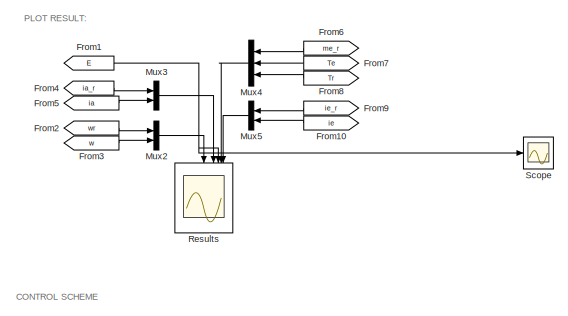
[diagram: root canvas - part 1/2, top left region]
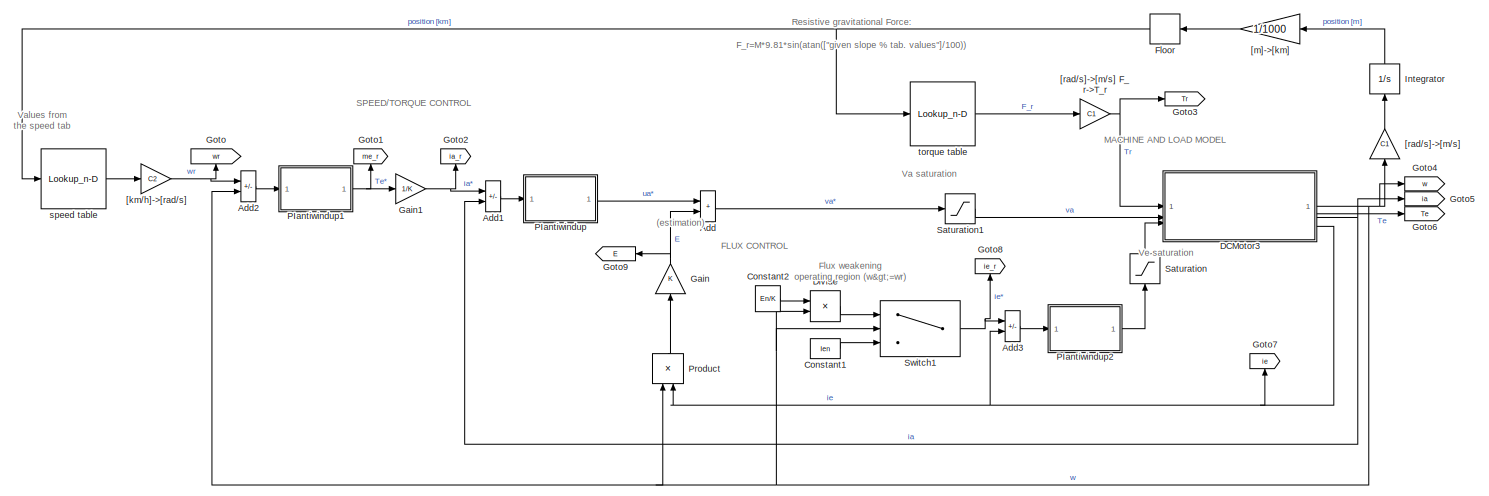
[diagram: root canvas - part 2/2, full width, bottom band]
MODEL slx_ce5a0983a4ae
KIND model
CONFIG AbsTol = auto
CONFIG EnableMultiTasking = off
CONFIG FixedStep = auto
CONFIG MaxStep = auto
CONFIG MinStep = auto
CONFIG RelTol = 1e-3
CONFIG SampleTimeConstraint = Unconstrained
CONFIG SolverName = VariableStepAuto
CONFIG StartTime = 0.0
CONFIG StopTime = 750
BLOCK [Sum] Add
  IconShape = rectangular
BLOCK [Sum] Add1
  IconShape = rectangular
  Inputs = +-
BLOCK [Sum] Add2
  IconShape = rectangular
  Inputs = +-
BLOCK [Sum] Add3
  IconShape = rectangular
  Inputs = +-
BLOCK [Constant] Constant1
  Value = Ien
BLOCK [Constant] Constant2
  Value = En/K
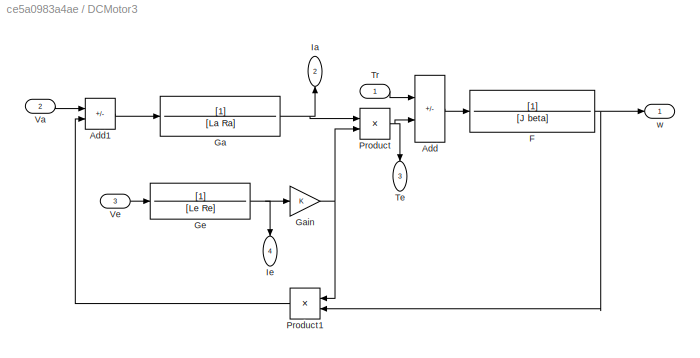
BLOCK [SubSystem] DCMotor3
BLOCK [Sum] DCMotor3/Add
  IconShape = rectangular
  Inputs = -+
BLOCK [Sum] DCMotor3/Add1
  IconShape = rectangular
  Inputs = +-
BLOCK [TransferFcn] DCMotor3/F
  Denominator = [J beta]
BLOCK [TransferFcn] DCMotor3/Ga
  Denominator = [La Ra]
BLOCK [Gain] DCMotor3/Gain
  Gain = K
BLOCK [TransferFcn] DCMotor3/Ge
  Denominator = [Le Re]
BLOCK [Outport] DCMotor3/Ia
  NameLocation = right
  Port = 2
  VectorParamsAs1DForOutWhenUnconnected = off
BLOCK [Outport] DCMotor3/Ie
  NameLocation = left
  Port = 4
  VectorParamsAs1DForOutWhenUnconnected = off
BLOCK [Product] DCMotor3/Product
BLOCK [Product] DCMotor3/Product1
BLOCK [Outport] DCMotor3/Te
  NameLocation = left
  Port = 3
  VectorParamsAs1DForOutWhenUnconnected = off
BLOCK [Inport] DCMotor3/Tr
  NameLocation = top
BLOCK [Inport] DCMotor3/Va
  NameLocation = top
  Port = 2
BLOCK [Inport] DCMotor3/Ve
  Port = 3
BLOCK [Outport] DCMotor3/w
  VectorParamsAs1DForOutWhenUnconnected = off
BLOCK [Product] Divide
  Inputs = */
BLOCK [Rounding] Floor
BLOCK [From] From1
  GotoTag = E
  IconDisplay = Signal name
BLOCK [From] From10
  GotoTag = ie
  IconDisplay = Signal name
BLOCK [From] From2
  GotoTag = wr
  IconDisplay = Signal name
BLOCK [From] From3
  GotoTag = w
  IconDisplay = Signal name
BLOCK [From] From4
  GotoTag = ia_r
  IconDisplay = Signal name
  TagVisibility = global
BLOCK [From] From5
  GotoTag = ia
  IconDisplay = Signal name
BLOCK [From] From6
  GotoTag = me_r
BLOCK [From] From7
  GotoTag = Te
  IconDisplay = Signal name
BLOCK [From] From8
  GotoTag = Tr
  IconDisplay = Signal name
BLOCK [From] From9
  GotoTag = ie_r
  IconDisplay = Signal name
BLOCK [Gain] Gain
  Gain = K
  NameLocation = left
BLOCK [Gain] Gain1
  Gain = 1/K
  NameLocation = top
BLOCK [Goto] Goto
  GotoTag = wr
  NameLocation = left
BLOCK [Goto] Goto1
  GotoTag = me_r
  NameLocation = right
BLOCK [Goto] Goto2
  GotoTag = ia_r
  NameLocation = left
  TagVisibility = global
BLOCK [Goto] Goto3
  GotoTag = Tr
BLOCK [Goto] Goto4
  GotoTag = w
  IconDisplay = Signal name
BLOCK [Goto] Goto5
  GotoTag = ia
  IconDisplay = Signal name
BLOCK [Goto] Goto6
  GotoTag = Te
  IconDisplay = Signal name
BLOCK [Goto] Goto7
  GotoTag = ie
  NameLocation = left
BLOCK [Goto] Goto8
  GotoTag = ie_r
  NameLocation = left
BLOCK [Goto] Goto9
  GotoTag = E
BLOCK [Integrator] Integrator
  NameLocation = right
BLOCK [Mux] Mux2
  DisplayOption = bar
  Inputs = 2
BLOCK [Mux] Mux3
  DisplayOption = bar
  Inputs = 2
BLOCK [Mux] Mux4
  DisplayOption = bar
  Inputs = 3
BLOCK [Mux] Mux5
  DisplayOption = bar
  Inputs = 2
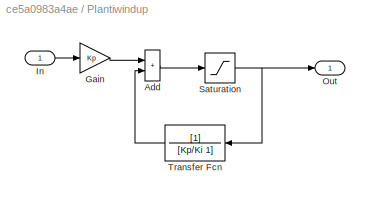
BLOCK [SubSystem] PIantiwindup
BLOCK [Sum] PIantiwindup/Add
  IconShape = rectangular
BLOCK [Gain] PIantiwindup/Gain
  Gain = Kp
BLOCK [Inport] PIantiwindup/In
BLOCK [Outport] PIantiwindup/Out
  VectorParamsAs1DForOutWhenUnconnected = off
BLOCK [Saturate] PIantiwindup/Saturation
  LowerLimit = sat_down
  UpperLimit = sat_up
BLOCK [TransferFcn] PIantiwindup/Transfer Fcn
  Denominator = [Kp/Ki 1]
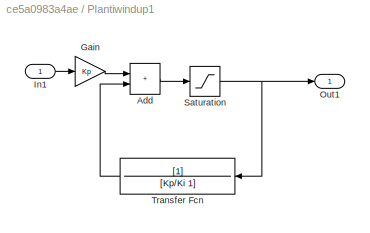
BLOCK [SubSystem] PIantiwindup1
BLOCK [Sum] PIantiwindup1/Add
  IconShape = rectangular
BLOCK [Gain] PIantiwindup1/Gain
  Gain = Kp
BLOCK [Inport] PIantiwindup1/In1
BLOCK [Outport] PIantiwindup1/Out1
  VectorParamsAs1DForOutWhenUnconnected = off
BLOCK [Saturate] PIantiwindup1/Saturation
  LowerLimit = sat_down
  UpperLimit = sat_up
BLOCK [TransferFcn] PIantiwindup1/Transfer Fcn
  Denominator = [Kp/Ki 1]
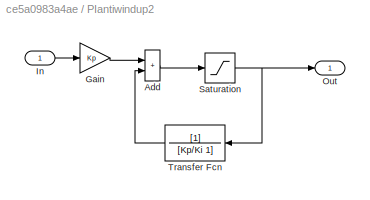
BLOCK [SubSystem] PIantiwindup2
BLOCK [Sum] PIantiwindup2/Add
  IconShape = rectangular
BLOCK [Gain] PIantiwindup2/Gain
  Gain = Kp
BLOCK [Inport] PIantiwindup2/In
BLOCK [Outport] PIantiwindup2/Out
  VectorParamsAs1DForOutWhenUnconnected = off
BLOCK [Saturate] PIantiwindup2/Saturation
  LowerLimit = sat_down
  UpperLimit = sat_up
BLOCK [TransferFcn] PIantiwindup2/Transfer Fcn
  Denominator = [Kp/Ki 1]
BLOCK [Product] Product
  NameLocation = left
BLOCK [Scope] Results
  Floating = off
  NameLocation = left
  NumInputPorts = 5
  ScopeSpecificationString = Simulink.scopes.TimeScopeBlockCfg('CurrentConfiguration', extmgr.ConfigurationSet(extmgr.Configuration('Core','General UI',true,'FigureColor',[1 1 1]),extmgr.Configuration('Core','Source UI',true),extmgr.Configuration('Sources','WiredSimulink',true),extmgr.Configuration('Visuals','Time Domain',true,'SerializedDisplays',{struct('MinYLimReal','-50.5563','MaxYLimReal','445.13841','YLabelReal','','Min...<+5432ch>
BLOCK [Saturate] Saturation
  LowerLimit = -Ven
  NameLocation = right
  UpperLimit = Ven
BLOCK [Saturate] Saturation1
  LowerLimit = -Vn
  UpperLimit = Vn
BLOCK [Scope] Scope
  Floating = off
  NumInputPorts = 1
  ScopeSpecificationString = Simulink.scopes.TimeScopeBlockCfg('CurrentConfiguration', extmgr.ConfigurationSet(extmgr.Configuration('Core','General UI',true,'FigureColor',[1 1 1]),extmgr.Configuration('Core','Source UI',true),extmgr.Configuration('Sources','WiredSimulink',true,'DataLoggingVariableName','ScopeData2'),extmgr.Configuration('Visuals','Time Domain',true,'SerializedDisplays',{struct('MinYLimReal','-67.97671','MaxYL...<+1551ch>
BLOCK [Switch] Switch1
  InputSameDT = off
  SaturateOnIntegerOverflow = off
  Threshold = 314
BLOCK [Gain] [km//h]->[rad//s]
  Gain = C2
BLOCK [Gain] [m]->[km]
  Gain = 1/1000
BLOCK [Gain] [rad//s]->[m//s]
  Gain = C1
  NameLocation = right
BLOCK [Gain] [rad//s]->[m//s] F_r->T_r
  Gain = C1
BLOCK [Lookup_n-D] speed table
  BreakpointsForDimension1 = [0 1 3 4 6 8 9 10]
  InputPortMap = u0
  InternalRulePriority = Speed
  InterpMethod = Flat
  NumberOfTableDimensions = 1
  RndMeth = Simplest
  Table = [35 60 60 75 60 60 35 0]
BLOCK [Lookup_n-D] torque table
  BreakpointsForDimension1 = [0 1 3 4 6 8 9 10]
  InputPortMap = u0
  InternalRulePriority = Speed
  InterpMethod = Flat
  NumberOfTableDimensions = 1
  RndMeth = Simplest
  Table = M*9.81*sin(atan([0 0 0.05 0 0 -0.05 0 0]))
ANNOTATION (root): (estimation)
ANNOTATION (root): CONTROL SCHEME
ANNOTATION (root): Flux weakening operating region (w>=wr)
ANNOTATION (root): FLUX CONTROL
ANNOTATION (root): SPEED/TORQUE CONTROL
ANNOTATION (root): MACHINE AND LOAD MODEL
ANNOTATION (root): PLOT RESULT:
ANNOTATION (root): Resistive gravitational Force: F_r=M*9.81*sin(atan(["given slope % tab. values"]/100))
ANNOTATION (root): Va saturation
ANNOTATION (root): Values from the speed tab
ANNOTATION (root): Ve saturation
LINE Add1:1 -> PIantiwindup:1
LINE Add2:1 -> PIantiwindup1:1
LINE Add3:1 -> PIantiwindup2:1
LINE Add:1 -> Saturation1:1
LINE Constant1:1 -> Switch1:3
LINE Constant2:1 -> Divide:1
LINE DCMotor3/Add1:1 -> DCMotor3/Ga:1
LINE DCMotor3/Add:1 -> DCMotor3/F:1
NET DCMotor3/F:1 -> DCMotor3/Product1:2, DCMotor3/w:1
NET DCMotor3/Ga:1 -> DCMotor3/Ia:1, DCMotor3/Product:1
NET DCMotor3/Gain:1 -> DCMotor3/Product1:1, DCMotor3/Product:2
NET DCMotor3/Ge:1 -> DCMotor3/Gain:1, DCMotor3/Ie:1
LINE DCMotor3/Product1:1 -> DCMotor3/Add1:2
NET DCMotor3/Product:1 -> DCMotor3/Add:2, DCMotor3/Te:1
LINE DCMotor3/Tr:1 -> DCMotor3/Add:1
LINE DCMotor3/Va:1 -> DCMotor3/Add1:1
LINE DCMotor3/Ve:1 -> DCMotor3/Ge:1
NET DCMotor3:1 -> Add2:2, Divide:2, Goto4:1, Product:1, Switch1:2, [rad//s]->[m//s]:1
NET DCMotor3:2 -> Add1:2, Goto5:1
LINE DCMotor3:3 -> Goto6:1
NET DCMotor3:4 -> Add3:2, Goto7:1, Product:2
LINE Divide:1 -> Switch1:1
NET Floor:1 -> speed table:1, torque table:1
LINE From10:1 -> Mux5:2
NET From1:1 -> Results:3, Scope:1
LINE From2:1 -> Mux2:1
LINE From3:1 -> Mux2:2
LINE From4:1 -> Mux3:1
LINE From5:1 -> Mux3:2
LINE From6:1 -> Mux4:1
LINE From7:1 -> Mux4:2
LINE From8:1 -> Mux4:3
LINE From9:1 -> Mux5:1
NET Gain1:1 -> Add1:1, Goto2:1
NET Gain:1 -> Add:2, Goto9:1
LINE Integrator:1 -> [m]->[km]:1
LINE Mux2:1 -> Results:1
LINE Mux3:1 -> Results:2
LINE Mux4:1 -> Results:4
LINE Mux5:1 -> Results:5
LINE PIantiwindup/Add:1 -> PIantiwindup/Saturation:1
LINE PIantiwindup/Gain:1 -> PIantiwindup/Add:1
LINE PIantiwindup/In:1 -> PIantiwindup/Gain:1
NET PIantiwindup/Saturation:1 -> PIantiwindup/Out:1, PIantiwindup/Transfer Fcn:1
LINE PIantiwindup/Transfer Fcn:1 -> PIantiwindup/Add:2
LINE PIantiwindup1/Add:1 -> PIantiwindup1/Saturation:1
LINE PIantiwindup1/Gain:1 -> PIantiwindup1/Add:1
LINE PIantiwindup1/In1:1 -> PIantiwindup1/Gain:1
NET PIantiwindup1/Saturation:1 -> PIantiwindup1/Out1:1, PIantiwindup1/Transfer Fcn:1
LINE PIantiwindup1/Transfer Fcn:1 -> PIantiwindup1/Add:2
NET PIantiwindup1:1 -> Gain1:1, Goto1:1
LINE PIantiwindup2/Add:1 -> PIantiwindup2/Saturation:1
LINE PIantiwindup2/Gain:1 -> PIantiwindup2/Add:1
LINE PIantiwindup2/In:1 -> PIantiwindup2/Gain:1
NET PIantiwindup2/Saturation:1 -> PIantiwindup2/Out:1, PIantiwindup2/Transfer Fcn:1
LINE PIantiwindup2/Transfer Fcn:1 -> PIantiwindup2/Add:2
LINE PIantiwindup2:1 -> Saturation:1
LINE PIantiwindup:1 -> Add:1
LINE Product:1 -> Gain:1
LINE Saturation1:1 -> DCMotor3:2
LINE Saturation:1 -> DCMotor3:3
NET Switch1:1 -> Add3:1, Goto8:1
NET [km//h]->[rad//s]:1 -> Add2:1, Goto:1
LINE [m]->[km]:1 -> Floor:1
NET [rad//s]->[m//s] F_r->T_r:1 -> DCMotor3:1, Goto3:1
LINE [rad//s]->[m//s]:1 -> Integrator:1
LINE speed table:1 -> [km//h]->[rad//s]:1
LINE torque table:1 -> [rad//s]->[m//s] F_r->T_r:1
note: NET lines group one-source signal fan-out (src -> all destinations, sorted); 1:1 wires keep LINE
